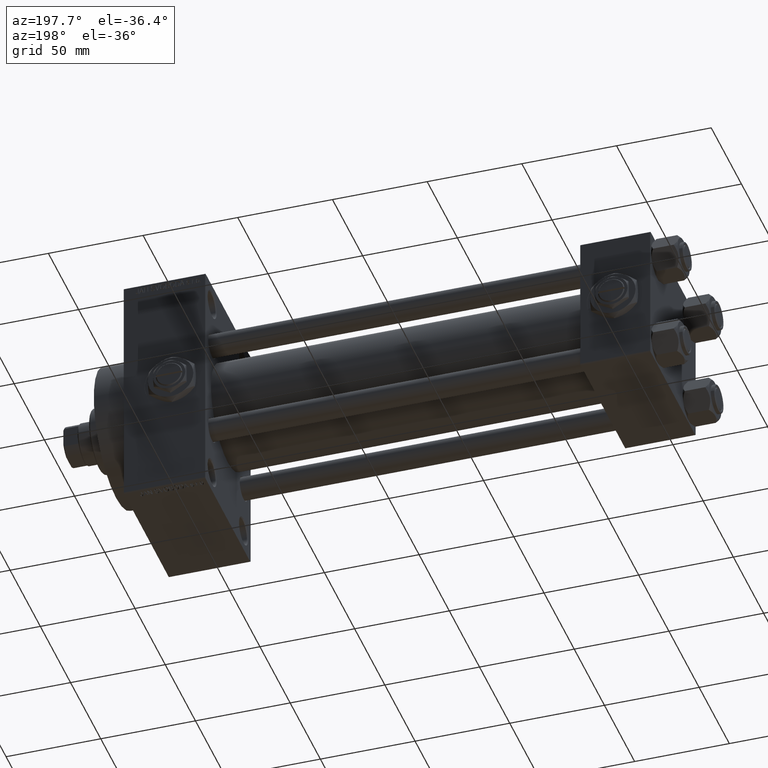
[diagram: clean part render]
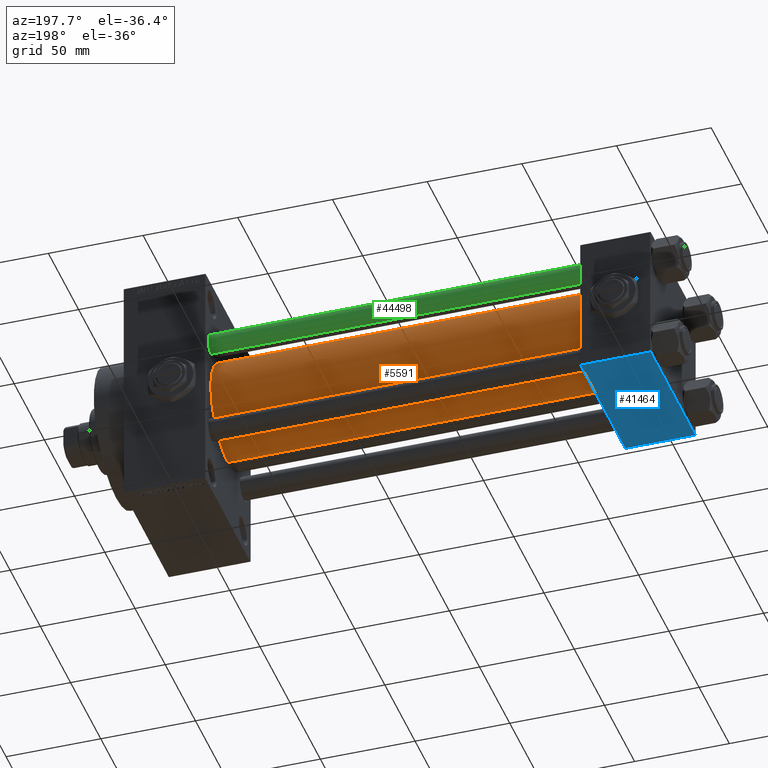
[diagram: same view with three faces highlighted in distinct colors, each labeled with its STEP entity id]
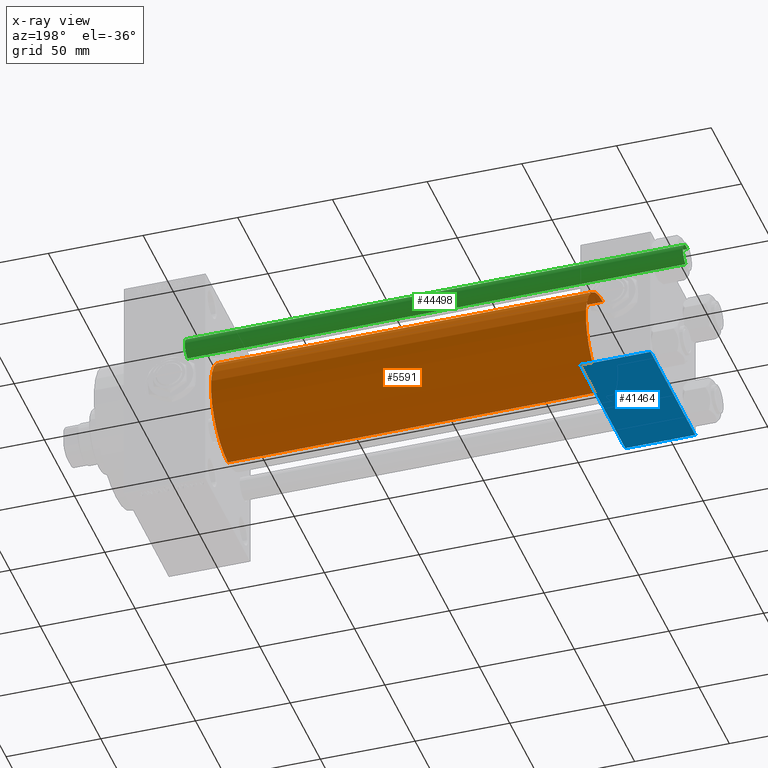
[diagram: x-ray of the same camera — body ghosted, the three highlighted faces saturated]
A machine part, auxiliary view with three faces highlighted in distinct colors.
The next image is the same camera in x-ray (body ghosted, the three faces saturated) — at least one of them is partly hidden behind the body in this view.
Their STEP definitions:

[orange] entity #5591 — the highlighted cylindrical surface (partial cylindrical patch) has radius 28 mm, axis along (-1, -0, -0).
#349 = DIRECTION ( 'NONE',  ( 0.000000000000000000, 0.000000000000000000, 1.000000000000000000 ) ) ;
#1114 = CIRCLE ( 'NONE', #28947, 28.00000000000000000 ) ;
#1808 = CARTESIAN_POINT ( 'NONE',  ( 235.0000000000000284, 8.269258236473784371E-16, -28.00000000000000000 ) ) ;
#3431 = DIRECTION ( 'NONE',  ( 0.000000000000000000, 0.000000000000000000, -1.000000000000000000 ) ) ;
#3691 = ORIENTED_EDGE ( 'NONE', *, *, #8521, .F. ) ;
#3834 = CARTESIAN_POINT ( 'NONE',  ( 37.00000000000000711, -2.602085213965210642E-15, 0.000000000000000000 ) ) ;
#4281 = DIRECTION ( 'NONE',  ( -1.000000000000000000, -0.000000000000000000, -0.000000000000000000 ) ) ;
#4533 = LINE ( 'NONE', #15988, #34699 ) ;
#5591 = ADVANCED_FACE ( 'NONE', ( #26760 ), #25775, .T. ) ;
#8521 = EDGE_CURVE ( 'NONE', #15825, #48712, #4533, .T. ) ;
#11161 = CARTESIAN_POINT ( 'NONE',  ( 235.0000000000000284, -2.602085213965210642E-15, 0.000000000000000000 ) ) ;
#11663 = ORIENTED_EDGE ( 'NONE', *, *, #49112, .F. ) ;
#11873 = CARTESIAN_POINT ( 'NONE',  ( 37.00000000000000711, 8.269258236473784371E-16, -28.00000000000000000 ) ) ;
#12327 = AXIS2_PLACEMENT_3D ( 'NONE', #40991, #34481, #349 ) ;
#13071 = VERTEX_POINT ( 'NONE', #1808 ) ;
#14801 = DIRECTION ( 'NONE',  ( 0.000000000000000000, 0.000000000000000000, 1.000000000000000000 ) ) ;
#15825 = VERTEX_POINT ( 'NONE', #47413 ) ;
#15988 = CARTESIAN_POINT ( 'NONE',  ( 235.0000000000000284, -2.602085213965210642E-15, 28.00000000000000000 ) ) ;
#18324 = CARTESIAN_POINT ( 'NONE',  ( 235.0000000000000284, 8.269258236473784371E-16, -28.00000000000000000 ) ) ;
#19392 = EDGE_LOOP ( 'NONE', ( #11663, #47291, #42613, #3691 ) ) ;
#20483 = AXIS2_PLACEMENT_3D ( 'NONE', #3834, #30482, #14801 ) ;
#22346 = DIRECTION ( 'NONE',  ( 1.000000000000000000, 0.000000000000000000, 0.000000000000000000 ) ) ;
#25775 = CYLINDRICAL_SURFACE ( 'NONE', #12327, 28.00000000000000000 ) ;
#26760 = FACE_OUTER_BOUND ( 'NONE', #19392, .T. ) ;
#28850 = VERTEX_POINT ( 'NONE', #11873 ) ;
#28947 = AXIS2_PLACEMENT_3D ( 'NONE', #11161, #22346, #3431 ) ;
#30482 = DIRECTION ( 'NONE',  ( 1.000000000000000000, -0.000000000000000000, 0.000000000000000000 ) ) ;
#30838 = EDGE_CURVE ( 'NONE', #13071, #28850, #34018, .T. ) ;
#32664 = CARTESIAN_POINT ( 'NONE',  ( 37.00000000000000711, -2.602085213965210642E-15, 28.00000000000000000 ) ) ;
#34018 = LINE ( 'NONE', #18324, #48159 ) ;
#34481 = DIRECTION ( 'NONE',  ( -1.000000000000000000, -0.000000000000000000, -0.000000000000000000 ) ) ;
#34699 = VECTOR ( 'NONE', #4281, 1000.000000000000000 ) ;
#40901 = EDGE_CURVE ( 'NONE', #28850, #48712, #41985, .T. ) ;
#40991 = CARTESIAN_POINT ( 'NONE',  ( 235.0000000000000284, -2.602085213965210642E-15, 0.000000000000000000 ) ) ;
#41497 = DIRECTION ( 'NONE',  ( -1.000000000000000000, -0.000000000000000000, -0.000000000000000000 ) ) ;
#41985 = CIRCLE ( 'NONE', #20483, 28.00000000000000000 ) ;
#42613 = ORIENTED_EDGE ( 'NONE', *, *, #40901, .T. ) ;
#47291 = ORIENTED_EDGE ( 'NONE', *, *, #30838, .T. ) ;
#47413 = CARTESIAN_POINT ( 'NONE',  ( 235.0000000000000284, -2.602085213965210642E-15, 28.00000000000000000 ) ) ;
#48159 = VECTOR ( 'NONE', #41497, 1000.000000000000000 ) ;
#48712 = VERTEX_POINT ( 'NONE', #32664 ) ;
#49112 = EDGE_CURVE ( 'NONE', #13071, #15825, #1114, .T. ) ;

[blue] entity #41464 — the highlighted planar face has unit normal (0, 0, -1).
#1503 = LINE ( 'NONE', #20432, #2735 ) ;
#2611 = CARTESIAN_POINT ( 'NONE',  ( 0.000000000000000000, 36.99999999999997868, -37.50000000000000000 ) ) ;
#2735 = VECTOR ( 'NONE', #39382, 1000.000000000000000 ) ;
#3458 = VERTEX_POINT ( 'NONE', #41705 ) ;
#3858 = EDGE_CURVE ( 'NONE', #39162, #3458, #1503, .T. ) ;
#4698 = CARTESIAN_POINT ( 'NONE',  ( 37.00000000000000000, 37.49999999999999289, -37.50000000000000000 ) ) ;
#9262 = VERTEX_POINT ( 'NONE', #2611 ) ;
#11737 = LINE ( 'NONE', #30927, #27429 ) ;
#15268 = LINE ( 'NONE', #22238, #46460 ) ;
#16342 = EDGE_LOOP ( 'NONE', ( #18708, #38883, #44483, #39143 ) ) ;
#18708 = ORIENTED_EDGE ( 'NONE', *, *, #48169, .F. ) ;
#20432 = CARTESIAN_POINT ( 'NONE',  ( 0.000000000000000000, -37.00000000000002132, -37.50000000000000711 ) ) ;
#21625 = EDGE_CURVE ( 'NONE', #9262, #31152, #43876, .T. ) ;
#22238 = CARTESIAN_POINT ( 'NONE',  ( 0.000000000000000000, 37.49999999999999289, -37.50000000000000000 ) ) ;
#25983 = DIRECTION ( 'NONE',  ( 0.000000000000000000, -1.000000000000000000, -9.251858538542972814E-17 ) ) ;
#26616 = DIRECTION ( 'NONE',  ( 0.000000000000000000, 9.251858538542972814E-17, -1.000000000000000000 ) ) ;
#27357 = FACE_OUTER_BOUND ( 'NONE', #16342, .T. ) ;
#27429 = VECTOR ( 'NONE', #38642, 1000.000000000000000 ) ;
#29149 = CARTESIAN_POINT ( 'NONE',  ( 37.00000000000000000, 36.99999999999997868, -37.50000000000000000 ) ) ;
#30227 = CARTESIAN_POINT ( 'NONE',  ( 37.00000000000000000, -37.00000000000002132, -37.50000000000000711 ) ) ;
#30927 = CARTESIAN_POINT ( 'NONE',  ( 37.00000000000000000, 37.49999999999999289, -37.50000000000000000 ) ) ;
#31152 = VERTEX_POINT ( 'NONE', #34439 ) ;
#33782 = EDGE_CURVE ( 'NONE', #31152, #39162, #11737, .T. ) ;
#34439 = CARTESIAN_POINT ( 'NONE',  ( 37.00000000000000000, 36.99999999999997868, -37.50000000000000000 ) ) ;
#38247 = VECTOR ( 'NONE', #44125, 1000.000000000000000 ) ;
#38642 = DIRECTION ( 'NONE',  ( 0.000000000000000000, -1.000000000000000000, -9.251858538542972814E-17 ) ) ;
#38807 = AXIS2_PLACEMENT_3D ( 'NONE', #4698, #26616, #41837 ) ;
#38829 = PLANE ( 'NONE',  #38807 ) ;
#38883 = ORIENTED_EDGE ( 'NONE', *, *, #21625, .T. ) ;
#39143 = ORIENTED_EDGE ( 'NONE', *, *, #3858, .T. ) ;
#39162 = VERTEX_POINT ( 'NONE', #30227 ) ;
#39382 = DIRECTION ( 'NONE',  ( -1.000000000000000000, 0.000000000000000000, 0.000000000000000000 ) ) ;
#41464 = ADVANCED_FACE ( 'NONE', ( #27357 ), #38829, .T. ) ;
#41705 = CARTESIAN_POINT ( 'NONE',  ( 0.000000000000000000, -37.00000000000002132, -37.50000000000000711 ) ) ;
#41837 = DIRECTION ( 'NONE',  ( 0.000000000000000000, 1.000000000000000000, 9.251858538542972814E-17 ) ) ;
#43876 = LINE ( 'NONE', #29149, #38247 ) ;
#44125 = DIRECTION ( 'NONE',  ( 1.000000000000000000, 0.000000000000000000, 0.000000000000000000 ) ) ;
#44483 = ORIENTED_EDGE ( 'NONE', *, *, #33782, .T. ) ;
#46460 = VECTOR ( 'NONE', #25983, 1000.000000000000000 ) ;
#48169 = EDGE_CURVE ( 'NONE', #9262, #3458, #15268, .T. ) ;

[green] entity #44498 — the highlighted cylindrical surface (edge-blend (fillet) strip) has radius 6 mm, axis along (-1, -0, 0).
#1563 = VERTEX_POINT ( 'NONE', #33703 ) ;
#2226 = ORIENTED_EDGE ( 'NONE', *, *, #37594, .T. ) ;
#2313 = VERTEX_POINT ( 'NONE', #8410 ) ;
#2422 = VERTEX_POINT ( 'NONE', #6818 ) ;
#5471 = CARTESIAN_POINT ( 'NONE',  ( -6.000000000000000888, 0.000000000000000000, 0.5000000000000559552 ) ) ;
#6818 = CARTESIAN_POINT ( 'NONE',  ( -6.000000000000000888, 0.000000000000000000, 263.5000000000000568 ) ) ;
#7358 = CARTESIAN_POINT ( 'NONE',  ( 0.000000000000000000, 0.000000000000000000, 263.5000000000000568 ) ) ;
#7912 = AXIS2_PLACEMENT_3D ( 'NONE', #42910, #12728, #39399 ) ;
#8390 = AXIS2_PLACEMENT_3D ( 'NONE', #9322, #33686, #10781 ) ;
#8410 = CARTESIAN_POINT ( 'NONE',  ( 6.000000000000000888, 7.347880794884120722E-16, 263.5000000000000568 ) ) ;
#8549 = DIRECTION ( 'NONE',  ( -0.000000000000000000, -0.000000000000000000, -1.000000000000000000 ) ) ;
#9229 = EDGE_LOOP ( 'NONE', ( #47485, #2226, #20255, #22831 ) ) ;
#9322 = CARTESIAN_POINT ( 'NONE',  ( 0.000000000000000000, 0.000000000000000000, 0.5000000000000559552 ) ) ;
#9666 = EDGE_CURVE ( 'NONE', #1563, #39612, #20281, .T. ) ;
#10781 = DIRECTION ( 'NONE',  ( 1.000000000000000000, 0.000000000000000000, 0.000000000000000000 ) ) ;
#10833 = VECTOR ( 'NONE', #36343, 1000.000000000000000 ) ;
#12728 = DIRECTION ( 'NONE',  ( -0.000000000000000000, -0.000000000000000000, -1.000000000000000000 ) ) ;
#13744 = AXIS2_PLACEMENT_3D ( 'NONE', #7358, #14332, #48494 ) ;
#14332 = DIRECTION ( 'NONE',  ( 0.000000000000000000, 0.000000000000000000, -1.000000000000000000 ) ) ;
#20255 = ORIENTED_EDGE ( 'NONE', *, *, #9666, .T. ) ;
#20281 = CIRCLE ( 'NONE', #8390, 6.000000000000000888 ) ;
#22831 = ORIENTED_EDGE ( 'NONE', *, *, #31300, .F. ) ;
#24371 = LINE ( 'NONE', #47579, #10833 ) ;
#25554 = EDGE_CURVE ( 'NONE', #2422, #2313, #46381, .T. ) ;
#27921 = FACE_OUTER_BOUND ( 'NONE', #9229, .T. ) ;
#31300 = EDGE_CURVE ( 'NONE', #2422, #39612, #31450, .T. ) ;
#31450 = LINE ( 'NONE', #42183, #40187 ) ;
#33686 = DIRECTION ( 'NONE',  ( -0.000000000000000000, -0.000000000000000000, 1.000000000000000000 ) ) ;
#33703 = CARTESIAN_POINT ( 'NONE',  ( 6.000000000000000888, 7.347880794884120722E-16, 0.5000000000000559552 ) ) ;
#36343 = DIRECTION ( 'NONE',  ( -0.000000000000000000, -0.000000000000000000, -1.000000000000000000 ) ) ;
#37594 = EDGE_CURVE ( 'NONE', #2313, #1563, #24371, .T. ) ;
#39399 = DIRECTION ( 'NONE',  ( -1.000000000000000000, 0.000000000000000000, 0.000000000000000000 ) ) ;
#39612 = VERTEX_POINT ( 'NONE', #5471 ) ;
#40187 = VECTOR ( 'NONE', #8549, 1000.000000000000000 ) ;
#42183 = CARTESIAN_POINT ( 'NONE',  ( -6.000000000000000888, 0.000000000000000000, 264.0000000000000000 ) ) ;
#42910 = CARTESIAN_POINT ( 'NONE',  ( 0.000000000000000000, 0.000000000000000000, 264.0000000000000000 ) ) ;
#43654 = CYLINDRICAL_SURFACE ( 'NONE', #7912, 6.000000000000000888 ) ;
#44498 = ADVANCED_FACE ( 'NONE', ( #27921 ), #43654, .T. ) ;
#46381 = CIRCLE ( 'NONE', #13744, 6.000000000000000888 ) ;
#47485 = ORIENTED_EDGE ( 'NONE', *, *, #25554, .T. ) ;
#47579 = CARTESIAN_POINT ( 'NONE',  ( 6.000000000000000888, 7.347880794884120722E-16, 264.0000000000000000 ) ) ;
#48494 = DIRECTION ( 'NONE',  ( 1.000000000000000000, 0.000000000000000000, 0.000000000000000000 ) ) ;